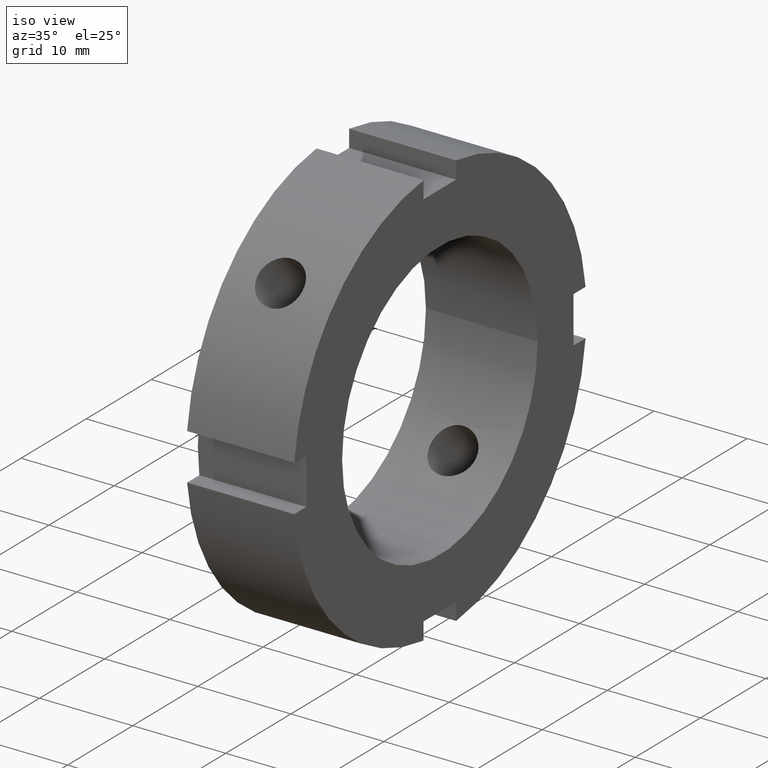
[diagram: clean part render]
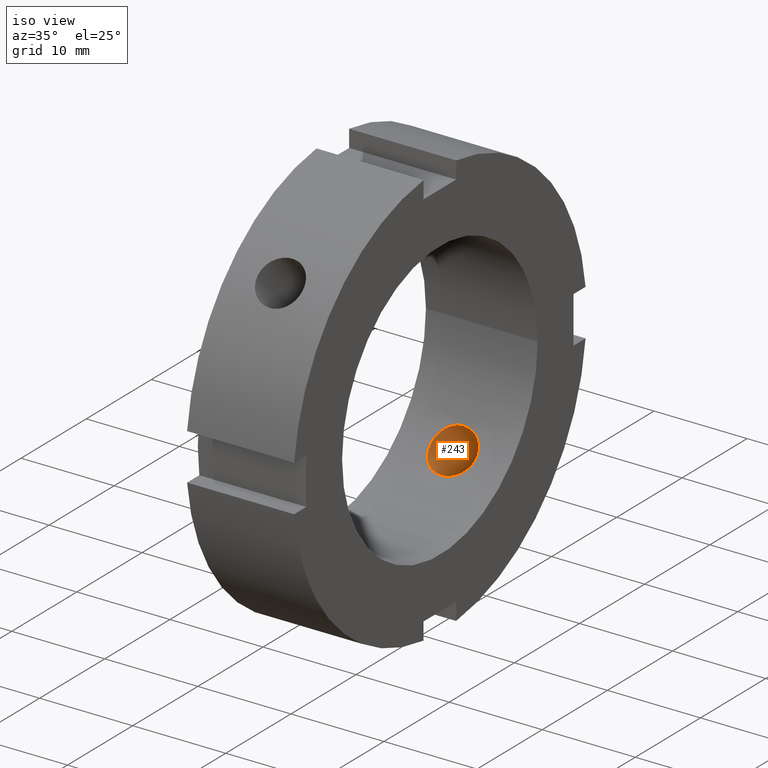
[diagram: same view with one face highlighted and labeled with its STEP entity id]
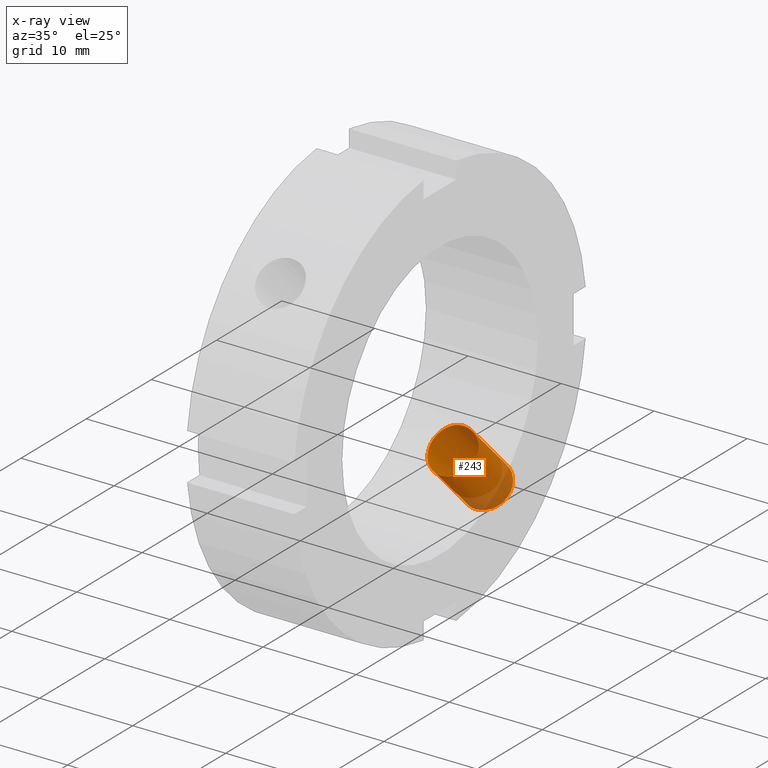
[diagram: x-ray of the same camera — body ghosted, the highlighted face saturated]
A machine part, iso view. The second image highlights one B-rep face of the part: STEP entity #243.
The next image is the same camera in x-ray: the body ghosted, the highlighted face saturated — about 19% of this face is hidden behind the body in this view.
In plain terms, the highlighted cylindrical surface (bore or boss wall) has radius 2.4585 mm, axis along (0, -0.7071, 0.7071).
Its self-contained STEP definition (entity closure, byte-faithful):
#156=CARTESIAN_POINT('',(5.999999999999996,45.519226706964147,-45.519226706964162));
#157=DIRECTION('',(0.0,-0.707106781186547,0.707106781186548));
#158=DIRECTION('',(1.0,0.0,0.0));
#159=AXIS2_PLACEMENT_3D('',#156,#157,#158);
#160=CYLINDRICAL_SURFACE('',#159,2.458500000000000);
#161=CARTESIAN_POINT('',(5.999999999999996,14.076219576510029,-17.553063619604288));
#162=VERTEX_POINT('',#161);
#163=CARTESIAN_POINT('',(5.999999999999997,14.076219576510029,-17.553063619604291));
#164=CARTESIAN_POINT('',(6.308960393679371,14.076219576510029,-17.553063619604291));
#165=CARTESIAN_POINT('',(6.638344698398967,14.124909885660648,-17.514360679914070));
#166=CARTESIAN_POINT('',(7.243994563331620,14.320382198770726,-17.354900256208236));
#167=CARTESIAN_POINT('',(7.520281295008823,14.466891324316499,-17.233888898292903));
#168=CARTESIAN_POINT('',(7.956561687762611,14.799295064858828,-16.949298990405367));
#169=CARTESIAN_POINT('',(8.145728064719986,15.007375209750576,-16.766650037019634));
#170=CARTESIAN_POINT('',(8.396704023595197,15.453565151078951,-16.356319520886647));
#171=CARTESIAN_POINT('',(8.458499999999996,15.691435649122106,-16.128369504272523));
#172=CARTESIAN_POINT('',(8.458499999999997,16.128369504272509,-15.691435649122118));
#173=CARTESIAN_POINT('',(8.396704023595197,16.356319520886636,-15.453565151078958));
#174=CARTESIAN_POINT('',(8.145728064719988,16.766650037019627,-15.007375209750581));
#175=CARTESIAN_POINT('',(7.956561687762611,16.949298990405353,-14.799295064858843));
#176=CARTESIAN_POINT('',(7.520281295008823,17.233888898292889,-14.466891324316510));
#177=CARTESIAN_POINT('',(7.243994563331623,17.354900256208232,-14.320382198770737));
#178=CARTESIAN_POINT('',(6.638344698398967,17.514360679914066,-14.124909885660655));
#179=CARTESIAN_POINT('',(6.308960393679371,17.553063619604291,-14.076219576510031));
#180=CARTESIAN_POINT('',(5.691039606320622,17.553063619604291,-14.076219576510031));
#181=CARTESIAN_POINT('',(5.361655301601026,17.514360679914066,-14.124909885660655));
#182=CARTESIAN_POINT('',(4.756005436668370,17.354900256208232,-14.320382198770737));
#183=CARTESIAN_POINT('',(4.479718704991170,17.233888898292889,-14.466891324316510));
#184=CARTESIAN_POINT('',(4.043438312237382,16.949298990405353,-14.799295064858843));
#185=CARTESIAN_POINT('',(3.854271935280007,16.766650037019627,-15.007375209750581));
#186=CARTESIAN_POINT('',(3.603295976404795,16.356319520886636,-15.453565151078958));
#187=CARTESIAN_POINT('',(3.541499999999995,16.128369504272509,-15.691435649122118));
#188=CARTESIAN_POINT('',(3.541499999999997,15.691435649122106,-16.128369504272523));
#189=CARTESIAN_POINT('',(3.603295976404797,15.453565151078944,-16.356319520886650));
#190=CARTESIAN_POINT('',(3.854271935280012,15.007375209750569,-16.766650037019634));
#191=CARTESIAN_POINT('',(4.043438312237383,14.799295064858828,-16.949298990405367));
#192=CARTESIAN_POINT('',(4.479718704991170,14.466891324316503,-17.233888898292903));
#193=CARTESIAN_POINT('',(4.756005436668371,14.320382198770726,-17.354900256208236));
#194=CARTESIAN_POINT('',(5.361655301601028,14.124909885660648,-17.514360679914070));
#195=CARTESIAN_POINT('',(5.691039606320622,14.076219576510029,-17.553063619604291));
#196=CARTESIAN_POINT('',(5.999999999999996,14.076219576510029,-17.553063619604291));
#197=B_SPLINE_CURVE_WITH_KNOTS('',3,(#163,#164,#165,#166,#167,#168,#169,#170,#171,#172,#173,#174,#175,#176,#177,#178,#179,#180,#181,#182,#183,#184,#185,#186,#187,#188,#189,#190,#191,#192,#193,#194,#195,#196),.UNSPECIFIED.,.T.,.U.,(4,2,2,2,2,2,2,2,2,2,2,2,2,2,2,2,4),(0.0,0.092688118103812,0.185376236207624,0.278063903779673,0.370751571351723,0.463439238923773,0.556126906495823,0.648815024599635,0.741503142703447,0.834191260807259,0.926879378911071,1.019567046483121,1.112254714055171,1.204942381627221,1.297630049199271,1.390318167303082,1.483006285406894),.UNSPECIFIED.);
#198=EDGE_CURVE('',#162,#162,#197,.T.);
#199=ORIENTED_EDGE('',*,*,#198,.F.);
#200=EDGE_LOOP('',(#199));
#201=FACE_OUTER_BOUND('',#200,.T.);
#202=CARTESIAN_POINT('',(5.999999999999996,8.724746182921342,-12.201590226015602));
#203=VERTEX_POINT('',#202);
#204=CARTESIAN_POINT('',(5.999999999999996,8.724746182921344,-12.201590226015602));
#205=CARTESIAN_POINT('',(5.690701021672719,8.724746182921344,-12.201590226015602));
#206=CARTESIAN_POINT('',(5.361174964781106,8.776102368125621,-12.165367077746916));
#207=CARTESIAN_POINT('',(4.755621264227975,8.980828535065385,-12.015025907051758));
#208=CARTESIAN_POINT('',(4.479544766165406,9.133769711757385,-11.900521299087359));
#209=CARTESIAN_POINT('',(4.043616630616778,9.477984124867881,-11.628240230684970));
#210=CARTESIAN_POINT('',(3.854499635617683,9.692306357282735,-11.452128029674073));
#211=CARTESIAN_POINT('',(3.603426014287465,10.147435642291988,-11.050863713432237));
#212=CARTESIAN_POINT('',(3.541499999999997,10.387899771169211,-10.825303664427203));
#213=CARTESIAN_POINT('',(3.541499999999997,10.825303664427198,-10.387899771169218));
#214=CARTESIAN_POINT('',(3.603426014287465,11.050863713432230,-10.147435642291997));
#215=CARTESIAN_POINT('',(3.854499635617681,11.452128029674068,-9.692306357282744));
#216=CARTESIAN_POINT('',(4.043616630616777,11.628240230684959,-9.477984124867886));
#217=CARTESIAN_POINT('',(4.479544766165404,11.900521299087350,-9.133769711757390));
#218=CARTESIAN_POINT('',(4.755621264227973,12.015025907051752,-8.980828535065390));
#219=CARTESIAN_POINT('',(5.361174964781102,12.165367077746911,-8.776102368125626));
#220=CARTESIAN_POINT('',(5.690701021672718,12.201590226015602,-8.724746182921344));
#221=CARTESIAN_POINT('',(6.309298978327275,12.201590226015602,-8.724746182921344));
#222=CARTESIAN_POINT('',(6.638825035218891,12.165367077746911,-8.776102368125626));
#223=CARTESIAN_POINT('',(7.244378735772019,12.015025907051752,-8.980828535065388));
#224=CARTESIAN_POINT('',(7.520455233834587,11.900521299087350,-9.133769711757392));
#225=CARTESIAN_POINT('',(7.956383369383215,11.628240230684959,-9.477984124867886));
#226=CARTESIAN_POINT('',(8.145500364382311,11.452128029674068,-9.692306357282742));
#227=CARTESIAN_POINT('',(8.396573985712529,11.050863713432230,-10.147435642291995));
#228=CARTESIAN_POINT('',(8.458499999999997,10.825303664427196,-10.387899771169218));
#229=CARTESIAN_POINT('',(8.458499999999996,10.387899771169211,-10.825303664427203));
#230=CARTESIAN_POINT('',(8.396573985712529,10.147435642291992,-11.050863713432237));
#231=CARTESIAN_POINT('',(8.145500364382311,9.692306357282735,-11.452128029674073));
#232=CARTESIAN_POINT('',(7.956383369383215,9.477984124867879,-11.628240230684970));
#233=CARTESIAN_POINT('',(7.520455233834587,9.133769711757385,-11.900521299087359));
#234=CARTESIAN_POINT('',(7.244378735772017,8.980828535065383,-12.015025907051758));
#235=CARTESIAN_POINT('',(6.638825035218887,8.776102368125621,-12.165367077746916));
#236=CARTESIAN_POINT('',(6.309298978327274,8.724746182921344,-12.201590226015602));
#237=CARTESIAN_POINT('',(5.999999999999997,8.724746182921344,-12.201590226015602));
#238=B_SPLINE_CURVE_WITH_KNOTS('',3,(#204,#205,#206,#207,#208,#209,#210,#211,#212,#213,#214,#215,#216,#217,#218,#219,#220,#221,#222,#223,#224,#225,#226,#227,#228,#229,#230,#231,#232,#233,#234,#235,#236,#237),.UNSPECIFIED.,.T.,.U.,(4,2,2,2,2,2,2,2,2,2,2,2,2,2,2,2,4),(0.0,0.092789693498183,0.185579386996367,0.278366764708402,0.371154142420438,0.463941520132473,0.556728897844508,0.649518591342692,0.742308284840876,0.835097978339059,0.927887671837243,1.020675049549278,1.113462427261313,1.206249804973349,1.299037182685384,1.391826876183568,1.484616569681751),.UNSPECIFIED.);
#239=EDGE_CURVE('',#203,#203,#238,.T.);
#240=ORIENTED_EDGE('',*,*,#239,.F.);
#241=EDGE_LOOP('',(#240));
#242=FACE_BOUND('',#241,.T.);
#243=ADVANCED_FACE('',(#201,#242),#160,.F.);